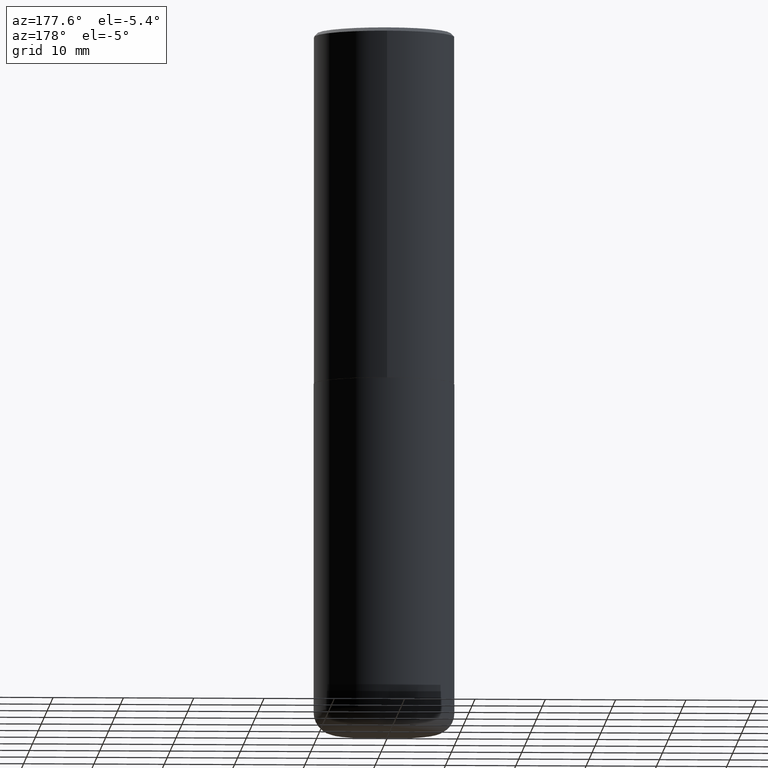
[diagram: clean part render]
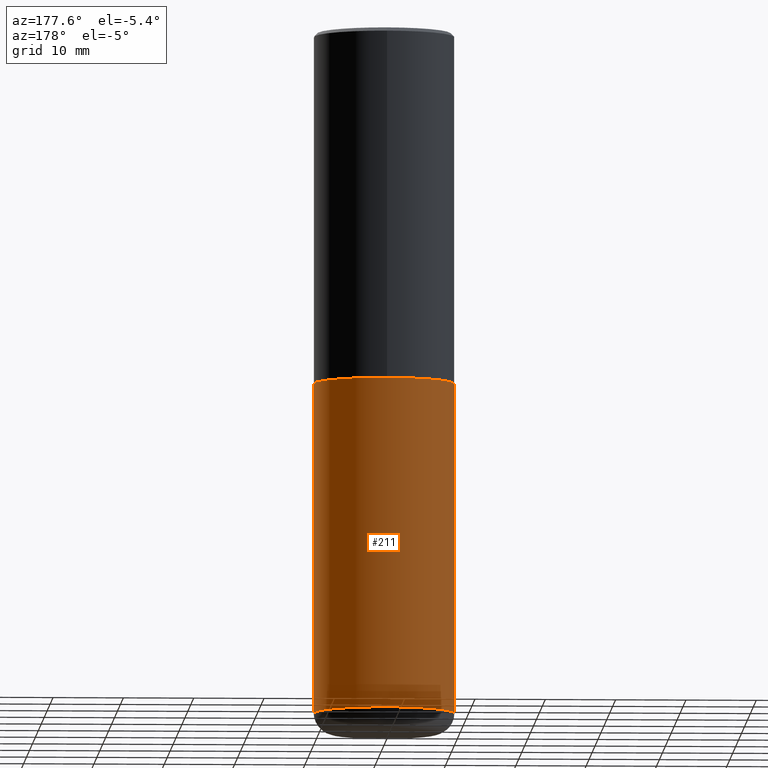
[diagram: same view with one face highlighted and labeled with its STEP entity id]
A machine part, auxiliary view. The second image highlights one B-rep face of the part: STEP entity #211.
In plain terms, the highlighted cylindrical surface (partial cylindrical patch) has radius 10 mm, axis along (-0, 0, 1).
Its self-contained STEP definition (entity closure, byte-faithful):
#27 = AXIS2_PLACEMENT_3D ( 'NONE', #287, #389, #100 ) ;
#30 = CARTESIAN_POINT ( 'NONE',  ( 0.3937000000000000499, -1.608281049111317408E-14, -3.818900000000000183 ) ) ;
#46 = ORIENTED_EDGE ( 'NONE', *, *, #151, .T. ) ;
#57 = CARTESIAN_POINT ( 'NONE',  ( 0.3937000000000000499, -2.749192406205083217E-15, 1.919750796630860172E-29 ) ) ;
#60 = DIRECTION ( 'NONE',  ( 1.000000000000000000, -6.982962677686265922E-15, 4.876176775795935793E-29 ) ) ;
#79 = EDGE_CURVE ( 'NONE', #323, #379, #231, .T. ) ;
#82 = VECTOR ( 'NONE', #94, 39.37007874015748143 ) ;
#90 = CARTESIAN_POINT ( 'NONE',  ( 0.3937000000000000499, -9.622173421717814924E-15, -1.968500000000000139 ) ) ;
#92 = CARTESIAN_POINT ( 'NONE',  ( -0.3937000000000000499, -1.053621133422057529E-14, -3.818900000000000183 ) ) ;
#94 = DIRECTION ( 'NONE',  ( -2.445468806185136877E-29, 3.491481338843145188E-15, 1.000000000000000000 ) ) ;
#96 = EDGE_CURVE ( 'NONE', #264, #379, #157, .T. ) ;
#100 = DIRECTION ( 'NONE',  ( 1.000000000000000000, -6.982962677686265133E-15, 0.000000000000000000 ) ) ;
#103 = CARTESIAN_POINT ( 'NONE',  ( 0.000000000000000000, 0.000000000000000000, 0.000000000000000000 ) ) ;
#151 = EDGE_CURVE ( 'NONE', #268, #323, #251, .T. ) ;
#157 = CIRCLE ( 'NONE', #27, 0.3937000000000000499 ) ;
#168 = AXIS2_PLACEMENT_3D ( 'NONE', #220, #171, #322 ) ;
#171 = DIRECTION ( 'NONE',  ( -2.445468806185136597E-29, 3.491481338843145583E-15, 1.000000000000000000 ) ) ;
#200 = DIRECTION ( 'NONE',  ( -2.445468806185136597E-29, 3.491481338843145583E-15, 1.000000000000000000 ) ) ;
#211 = ADVANCED_FACE ( 'NONE', ( #293 ), #392, .T. ) ;
#217 = ORIENTED_EDGE ( 'NONE', *, *, #263, .F. ) ;
#220 = CARTESIAN_POINT ( 'NONE',  ( 9.339000823940418668E-29, -1.333361808490808928E-14, -3.818900000000000183 ) ) ;
#223 = VECTOR ( 'NONE', #286, 39.37007874015748143 ) ;
#231 = LINE ( 'NONE', #325, #82 ) ;
#251 = CIRCLE ( 'NONE', #168, 0.3937000000000000499 ) ;
#257 = LINE ( 'NONE', #57, #223 ) ;
#263 = EDGE_CURVE ( 'NONE', #268, #264, #257, .T. ) ;
#264 = VERTEX_POINT ( 'NONE', #90 ) ;
#268 = VERTEX_POINT ( 'NONE', #30 ) ;
#286 = DIRECTION ( 'NONE',  ( -2.445468806185136877E-29, 3.491481338843145188E-15, 1.000000000000000000 ) ) ;
#287 = CARTESIAN_POINT ( 'NONE',  ( 4.813905344975441835E-29, -6.872981015512731707E-15, -1.968500000000000139 ) ) ;
#293 = FACE_OUTER_BOUND ( 'NONE', #373, .T. ) ;
#295 = CARTESIAN_POINT ( 'NONE',  ( -0.3937000000000000499, -7.305892799522895709E-15, -1.968500000000000139 ) ) ;
#322 = DIRECTION ( 'NONE',  ( 1.000000000000000000, -6.982962677686267499E-15, 0.000000000000000000 ) ) ;
#323 = VERTEX_POINT ( 'NONE', #92 ) ;
#325 = CARTESIAN_POINT ( 'NONE',  ( -0.3937000000000000499, 2.797406750687514786E-15, -1.936584745033356735E-29 ) ) ;
#373 = EDGE_LOOP ( 'NONE', ( #46, #408, #393, #217 ) ) ;
#379 = VERTEX_POINT ( 'NONE', #295 ) ;
#389 = DIRECTION ( 'NONE',  ( -2.445468806185136597E-29, 3.491481338843145583E-15, 1.000000000000000000 ) ) ;
#392 = CYLINDRICAL_SURFACE ( 'NONE', #413, 0.3937000000000000499 ) ;
#393 = ORIENTED_EDGE ( 'NONE', *, *, #96, .F. ) ;
#408 = ORIENTED_EDGE ( 'NONE', *, *, #79, .T. ) ;
#413 = AXIS2_PLACEMENT_3D ( 'NONE', #103, #200, #60 ) ;